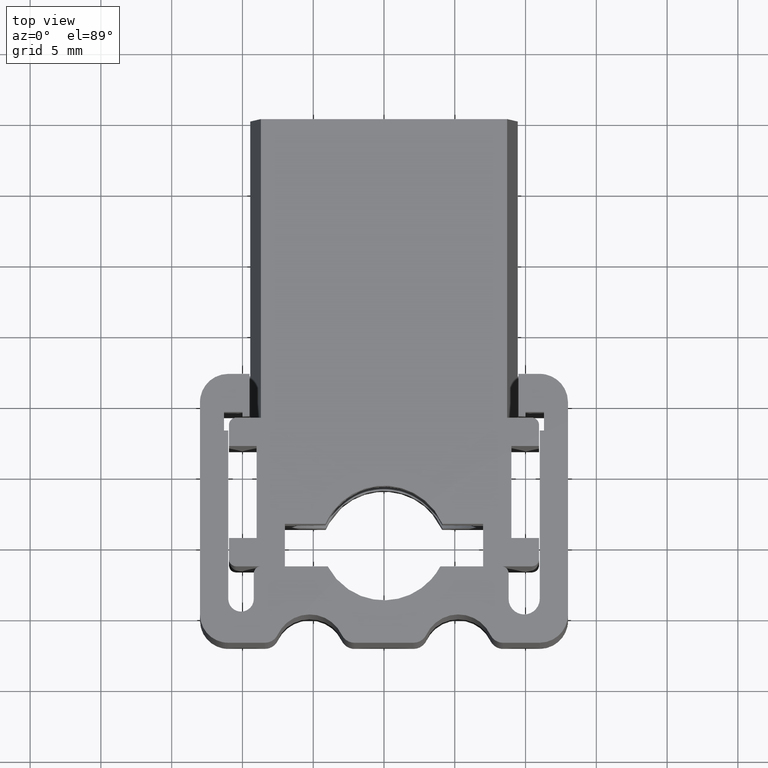
[diagram: clean part render]
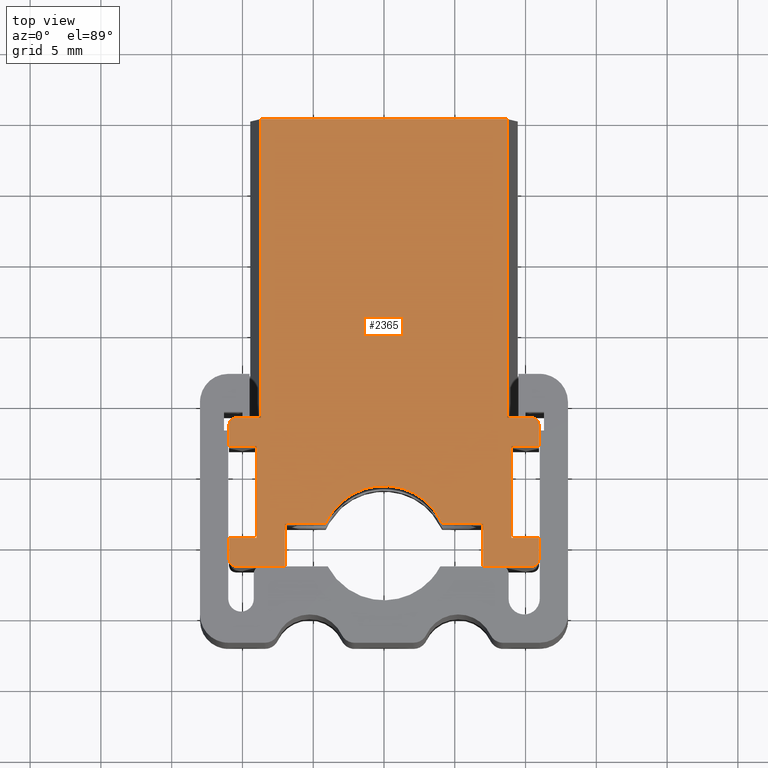
[diagram: same view with one face highlighted and labeled with its STEP entity id]
A machine part, top view. The second image highlights one B-rep face of the part: STEP entity #2365.
In plain terms, the highlighted face is a freeform B-spline surface patch.
Its self-contained STEP definition (entity closure, byte-faithful):
#1645=CARTESIAN_POINT('',(8.700000413227830,8.900000422727320,12.500000593718100));
#1646=VERTEX_POINT('',#1645);
#1659=CARTESIAN_POINT('',(8.700000413227830,30.000000422727350,12.500000593718100));
#1660=VERTEX_POINT('',#1659);
#1666=CARTESIAN_POINT('',(8.700000413227830,30.000000422727350,12.500000593718100));
#1667=CARTESIAN_POINT('',(8.700000413227830,8.900000422727320,12.500000593718100));
#1668=QUASI_UNIFORM_CURVE('',1,(#1666,#1667),.UNSPECIFIED.,.F.,.U.);
#1669=EDGE_CURVE('',#1660,#1646,#1668,.T.);
#1911=CARTESIAN_POINT('',(-8.700000413227800,8.900000422727320,12.500000593718100));
#1912=VERTEX_POINT('',#1911);
#1918=CARTESIAN_POINT('',(-8.700000413227800,30.000000422727350,12.500000593718100));
#1919=VERTEX_POINT('',#1918);
#1920=CARTESIAN_POINT('',(-8.700000413227800,30.000000422727350,12.500000593718100));
#1921=CARTESIAN_POINT('',(-8.700000413227800,8.900000422727320,12.500000593718100));
#1922=QUASI_UNIFORM_CURVE('',1,(#1920,#1921),.UNSPECIFIED.,.F.,.U.);
#1923=EDGE_CURVE('',#1919,#1912,#1922,.T.);
#2150=CARTESIAN_POINT('',(-12.043905940771371,31.578420089753450,12.500000000000000));
#2151=CARTESIAN_POINT('',(12.043906136572691,31.578420089753450,12.500000000000000));
#2152=CARTESIAN_POINT('',(-12.043905940771371,-3.178420873126103,12.500000000000000));
#2153=CARTESIAN_POINT('',(12.043906136572691,-3.178420873126103,12.500000000000000));
#2154=B_SPLINE_SURFACE_WITH_KNOTS('',1,1,((#2150,#2152),(#2151,#2153)),.UNSPECIFIED.,.F.,.F.,.U.,(2,2),(2,2),(0.0,24.087812077344061),(0.0,34.756840962879551),.UNSPECIFIED.);
#2155=CARTESIAN_POINT('',(10.950000520097101,8.400000398978621,12.500000000000000));
#2156=VERTEX_POINT('',#2155);
#2157=CARTESIAN_POINT('',(10.450000496348400,8.900000422727320,12.500000000000000));
#2158=VERTEX_POINT('',#2157);
#2159=CARTESIAN_POINT('',(10.950000520097120,8.400000398978621,12.500000000000000));
#2160=CARTESIAN_POINT('',(10.950000520097120,8.900000422727342,12.499999999999998));
#2161=CARTESIAN_POINT('',(10.450000496348400,8.900000422727342,12.500000000000000));
#2169=(BOUNDED_CURVE()B_SPLINE_CURVE(2,(#2159,#2160,#2161),.UNSPECIFIED.,.F.,.U.)CURVE()GEOMETRIC_REPRESENTATION_ITEM()QUASI_UNIFORM_CURVE()RATIONAL_B_SPLINE_CURVE((1.0,0.707106781186547,1.0))REPRESENTATION_ITEM(''));
#2170=EDGE_CURVE('',#2156,#2158,#2169,.T.);
#2171=ORIENTED_EDGE('',*,*,#2170,.T.);
#2172=CARTESIAN_POINT('',(8.700000413227830,8.900000422727320,12.500000593718100));
#2173=CARTESIAN_POINT('',(10.450000496348400,8.900000422727320,12.500000000000000));
#2174=QUASI_UNIFORM_CURVE('',1,(#2172,#2173),.UNSPECIFIED.,.F.,.U.);
#2175=EDGE_CURVE('',#1646,#2158,#2174,.T.);
#2176=ORIENTED_EDGE('',*,*,#2175,.F.);
#2177=ORIENTED_EDGE('',*,*,#1669,.F.);
#2178=CARTESIAN_POINT('',(8.700000413227830,30.000000422727350,12.500000593718100));
#2179=CARTESIAN_POINT('',(-8.700000413227800,30.000000422727350,12.500000593718100));
#2180=QUASI_UNIFORM_CURVE('',1,(#2178,#2179),.UNSPECIFIED.,.F.,.U.);
#2181=EDGE_CURVE('',#1660,#1919,#2180,.T.);
#2182=ORIENTED_EDGE('',*,*,#2181,.T.);
#2183=ORIENTED_EDGE('',*,*,#1923,.T.);
#2184=CARTESIAN_POINT('',(-10.450000496348300,8.900000422727340,12.500000000000000));
#2185=VERTEX_POINT('',#2184);
#2186=CARTESIAN_POINT('',(-10.450000496348300,8.900000422727340,12.500000000000000));
#2187=CARTESIAN_POINT('',(-8.700000413227800,8.900000422727320,12.500000593718100));
#2188=QUASI_UNIFORM_CURVE('',1,(#2186,#2187),.UNSPECIFIED.,.F.,.U.);
#2189=EDGE_CURVE('',#2185,#1912,#2188,.T.);
#2190=ORIENTED_EDGE('',*,*,#2189,.F.);
#2191=CARTESIAN_POINT('',(-10.950000520097040,8.400000398978621,12.500000000000000));
#2192=VERTEX_POINT('',#2191);
#2193=CARTESIAN_POINT('',(-10.450000496348300,8.900000422727342,12.500000000000000));
#2194=CARTESIAN_POINT('',(-10.950000520097021,8.900000422727342,12.499999999999998));
#2195=CARTESIAN_POINT('',(-10.950000520097021,8.400000398978621,12.500000000000000));
#2203=(BOUNDED_CURVE()B_SPLINE_CURVE(2,(#2193,#2194,#2195),.UNSPECIFIED.,.F.,.U.)CURVE()GEOMETRIC_REPRESENTATION_ITEM()QUASI_UNIFORM_CURVE()RATIONAL_B_SPLINE_CURVE((1.0,0.707106781186547,1.0))REPRESENTATION_ITEM(''));
#2204=EDGE_CURVE('',#2185,#2192,#2203,.T.);
#2205=ORIENTED_EDGE('',*,*,#2204,.T.);
#2206=CARTESIAN_POINT('',(-10.950000520097040,6.900000327732411,12.500000000000000));
#2207=VERTEX_POINT('',#2206);
#2208=CARTESIAN_POINT('',(-10.950000520097040,6.900000327732411,12.500000000000000));
#2209=CARTESIAN_POINT('',(-10.950000520097040,8.400000398978621,12.500000000000000));
#2210=QUASI_UNIFORM_CURVE('',1,(#2208,#2209),.UNSPECIFIED.,.F.,.U.);
#2211=EDGE_CURVE('',#2207,#2192,#2210,.T.);
#2212=ORIENTED_EDGE('',*,*,#2211,.F.);
#2213=CARTESIAN_POINT('',(-9.000000427477010,6.900000327732411,12.500000000000000));
#2214=VERTEX_POINT('',#2213);
#2215=CARTESIAN_POINT('',(-9.000000427477010,6.900000327732411,12.500000000000000));
#2216=CARTESIAN_POINT('',(-10.950000520097040,6.900000327732411,12.500000000000000));
#2217=QUASI_UNIFORM_CURVE('',1,(#2215,#2216),.UNSPECIFIED.,.F.,.U.);
#2218=EDGE_CURVE('',#2214,#2207,#2217,.T.);
#2219=ORIENTED_EDGE('',*,*,#2218,.F.);
#2220=CARTESIAN_POINT('',(-9.000000427477010,0.400000018999009,12.500000000000000));
#2221=VERTEX_POINT('',#2220);
#2222=CARTESIAN_POINT('',(-9.000000427477010,0.400000018999009,12.500000000000000));
#2223=CARTESIAN_POINT('',(-9.000000427477010,6.900000327732411,12.500000000000000));
#2224=QUASI_UNIFORM_CURVE('',1,(#2222,#2223),.UNSPECIFIED.,.F.,.U.);
#2225=EDGE_CURVE('',#2221,#2214,#2224,.T.);
#2226=ORIENTED_EDGE('',*,*,#2225,.F.);
#2227=CARTESIAN_POINT('',(-10.950000520097040,0.400000018999009,12.500000000000000));
#2228=VERTEX_POINT('',#2227);
#2229=CARTESIAN_POINT('',(-10.950000520097040,0.400000018999009,12.500000000000000));
#2230=CARTESIAN_POINT('',(-9.000000427477010,0.400000018999009,12.500000000000000));
#2231=QUASI_UNIFORM_CURVE('',1,(#2229,#2230),.UNSPECIFIED.,.F.,.U.);
#2232=EDGE_CURVE('',#2228,#2221,#2231,.T.);
#2233=ORIENTED_EDGE('',*,*,#2232,.F.);
#2234=CARTESIAN_POINT('',(-10.950000520097040,-1.100000052247196,12.500000000000000));
#2235=VERTEX_POINT('',#2234);
#2236=CARTESIAN_POINT('',(-10.950000520097040,-1.100000052247196,12.500000000000000));
#2237=CARTESIAN_POINT('',(-10.950000520097040,0.400000018999009,12.500000000000000));
#2238=QUASI_UNIFORM_CURVE('',1,(#2236,#2237),.UNSPECIFIED.,.F.,.U.);
#2239=EDGE_CURVE('',#2235,#2228,#2238,.T.);
#2240=ORIENTED_EDGE('',*,*,#2239,.F.);
#2241=CARTESIAN_POINT('',(-10.450000496348300,-1.600000075995895,12.500000000000000));
#2242=VERTEX_POINT('',#2241);
#2243=CARTESIAN_POINT('',(-10.950000520097030,-1.100000052247196,12.500000000000000));
#2244=CARTESIAN_POINT('',(-10.950000520097028,-1.600000075995924,12.499999999999998));
#2245=CARTESIAN_POINT('',(-10.450000496348300,-1.600000075995923,12.500000000000000));
#2253=(BOUNDED_CURVE()B_SPLINE_CURVE(2,(#2243,#2244,#2245),.UNSPECIFIED.,.F.,.U.)CURVE()GEOMETRIC_REPRESENTATION_ITEM()QUASI_UNIFORM_CURVE()RATIONAL_B_SPLINE_CURVE((1.0,0.707106781186547,1.0))REPRESENTATION_ITEM(''));
#2254=EDGE_CURVE('',#2235,#2242,#2253,.T.);
#2255=ORIENTED_EDGE('',*,*,#2254,.T.);
#2256=CARTESIAN_POINT('',(-7.0,-1.600000075995895,12.500000000000000));
#2257=VERTEX_POINT('',#2256);
#2258=CARTESIAN_POINT('',(-7.0,-1.600000075995895,12.500000000000000));
#2259=CARTESIAN_POINT('',(-10.450000496348300,-1.600000075995895,12.500000000000000));
#2260=QUASI_UNIFORM_CURVE('',1,(#2258,#2259),.UNSPECIFIED.,.F.,.U.);
#2261=EDGE_CURVE('',#2257,#2242,#2260,.T.);
#2262=ORIENTED_EDGE('',*,*,#2261,.F.);
#2263=CARTESIAN_POINT('',(-7.0,1.400000000000000,12.500000000000000));
#2264=VERTEX_POINT('',#2263);
#2265=CARTESIAN_POINT('',(-7.0,1.400000000000000,12.500000000000000));
#2266=CARTESIAN_POINT('',(-7.0,-1.600000075995895,12.500000000000000));
#2267=QUASI_UNIFORM_CURVE('',1,(#2265,#2266),.UNSPECIFIED.,.F.,.U.);
#2268=EDGE_CURVE('',#2264,#2257,#2267,.T.);
#2269=ORIENTED_EDGE('',*,*,#2268,.F.);
#2270=CARTESIAN_POINT('',(-4.124207449056706,1.400000000000000,12.500000000000000));
#2271=VERTEX_POINT('',#2270);
#2272=CARTESIAN_POINT('',(-4.124207449056706,1.400000000000000,12.500000000000000));
#2273=CARTESIAN_POINT('',(-7.0,1.400000000000000,12.500000000000000));
#2274=QUASI_UNIFORM_CURVE('',1,(#2272,#2273),.UNSPECIFIED.,.F.,.U.);
#2275=EDGE_CURVE('',#2271,#2264,#2274,.T.);
#2276=ORIENTED_EDGE('',*,*,#2275,.F.);
#2277=CARTESIAN_POINT('',(4.124207448008716,1.400000000000000,12.500000000000000));
#2278=VERTEX_POINT('',#2277);
#2279=CARTESIAN_POINT('',(4.124207448008713,1.399999999999998,12.500000000000000));
#2280=CARTESIAN_POINT('',(2.945909369137703,4.099999194738672,12.500000000000000));
#2281=CARTESIAN_POINT('',(-5.239968E-010,4.099999194738671,12.500000000000000));
#2282=CARTESIAN_POINT('',(-2.945909370185696,4.099999194738672,12.500000000000000));
#2283=CARTESIAN_POINT('',(-4.124207449056706,1.400000000000001,12.500000000000000));
#2291=(BOUNDED_CURVE()B_SPLINE_CURVE(2,(#2279,#2280,#2281,#2282,#2283),.UNSPECIFIED.,.F.,.U.)B_SPLINE_CURVE_WITH_KNOTS((3,2,3),(0.0,0.500000000000000,1.0),.UNSPECIFIED.)CURVE()GEOMETRIC_REPRESENTATION_ITEM()RATIONAL_B_SPLINE_CURVE((1.0,0.836653365622064,1.0,0.836653365622064,1.0))REPRESENTATION_ITEM(''));
#2292=EDGE_CURVE('',#2278,#2271,#2291,.T.);
#2293=ORIENTED_EDGE('',*,*,#2292,.F.);
#2294=CARTESIAN_POINT('',(7.0,1.400000000000000,12.500000000000000));
#2295=VERTEX_POINT('',#2294);
#2296=CARTESIAN_POINT('',(7.0,1.400000000000000,12.500000000000000));
#2297=CARTESIAN_POINT('',(4.124207448008716,1.400000000000000,12.500000000000000));
#2298=QUASI_UNIFORM_CURVE('',1,(#2296,#2297),.UNSPECIFIED.,.F.,.U.);
#2299=EDGE_CURVE('',#2295,#2278,#2298,.T.);
#2300=ORIENTED_EDGE('',*,*,#2299,.F.);
#2301=CARTESIAN_POINT('',(7.0,-1.600000075995895,12.500000000000000));
#2302=VERTEX_POINT('',#2301);
#2303=CARTESIAN_POINT('',(7.0,-1.600000075995895,12.500000000000000));
#2304=CARTESIAN_POINT('',(7.0,1.400000000000000,12.500000000000000));
#2305=QUASI_UNIFORM_CURVE('',1,(#2303,#2304),.UNSPECIFIED.,.F.,.U.);
#2306=EDGE_CURVE('',#2302,#2295,#2305,.T.);
#2307=ORIENTED_EDGE('',*,*,#2306,.F.);
#2308=CARTESIAN_POINT('',(10.450000496348400,-1.600000075995925,12.500000000000000));
#2309=VERTEX_POINT('',#2308);
#2310=CARTESIAN_POINT('',(10.450000496348400,-1.600000075995925,12.500000000000000));
#2311=CARTESIAN_POINT('',(7.0,-1.600000075995895,12.500000000000000));
#2312=QUASI_UNIFORM_CURVE('',1,(#2310,#2311),.UNSPECIFIED.,.F.,.U.);
#2313=EDGE_CURVE('',#2309,#2302,#2312,.T.);
#2314=ORIENTED_EDGE('',*,*,#2313,.F.);
#2315=CARTESIAN_POINT('',(10.950000520097101,-1.100000052247196,12.500000000000000));
#2316=VERTEX_POINT('',#2315);
#2317=CARTESIAN_POINT('',(10.450000496348400,-1.600000075995923,12.500000000000000));
#2318=CARTESIAN_POINT('',(10.950000520097127,-1.600000075995924,12.499999999999998));
#2319=CARTESIAN_POINT('',(10.950000520097101,-1.100000052247196,12.500000000000000));
#2327=(BOUNDED_CURVE()B_SPLINE_CURVE(2,(#2317,#2318,#2319),.UNSPECIFIED.,.F.,.U.)CURVE()GEOMETRIC_REPRESENTATION_ITEM()QUASI_UNIFORM_CURVE()RATIONAL_B_SPLINE_CURVE((1.0,0.707106781186547,1.0))REPRESENTATION_ITEM(''));
#2328=EDGE_CURVE('',#2309,#2316,#2327,.T.);
#2329=ORIENTED_EDGE('',*,*,#2328,.T.);
#2330=CARTESIAN_POINT('',(10.950000520097101,0.400000018999009,12.500000000000000));
#2331=VERTEX_POINT('',#2330);
#2332=CARTESIAN_POINT('',(10.950000520097101,0.400000018999009,12.500000000000000));
#2333=CARTESIAN_POINT('',(10.950000520097101,-1.100000052247196,12.500000000000000));
#2334=QUASI_UNIFORM_CURVE('',1,(#2332,#2333),.UNSPECIFIED.,.F.,.U.);
#2335=EDGE_CURVE('',#2331,#2316,#2334,.T.);
#2336=ORIENTED_EDGE('',*,*,#2335,.F.);
#2337=CARTESIAN_POINT('',(9.000000427477108,0.400000018999009,12.500000000000000));
#2338=VERTEX_POINT('',#2337);
#2339=CARTESIAN_POINT('',(9.000000427477108,0.400000018999009,12.500000000000000));
#2340=CARTESIAN_POINT('',(10.950000520097101,0.400000018999009,12.500000000000000));
#2341=QUASI_UNIFORM_CURVE('',1,(#2339,#2340),.UNSPECIFIED.,.F.,.U.);
#2342=EDGE_CURVE('',#2338,#2331,#2341,.T.);
#2343=ORIENTED_EDGE('',*,*,#2342,.F.);
#2344=CARTESIAN_POINT('',(9.000000427477108,6.900000327732411,12.500000000000000));
#2345=VERTEX_POINT('',#2344);
#2346=CARTESIAN_POINT('',(9.000000427477108,6.900000327732411,12.500000000000000));
#2347=CARTESIAN_POINT('',(9.000000427477108,0.400000018999009,12.500000000000000));
#2348=QUASI_UNIFORM_CURVE('',1,(#2346,#2347),.UNSPECIFIED.,.F.,.U.);
#2349=EDGE_CURVE('',#2345,#2338,#2348,.T.);
#2350=ORIENTED_EDGE('',*,*,#2349,.F.);
#2351=CARTESIAN_POINT('',(10.950000520097101,6.900000327732501,12.500000000000000));
#2352=VERTEX_POINT('',#2351);
#2353=CARTESIAN_POINT('',(10.950000520097101,6.900000327732501,12.500000000000000));
#2354=CARTESIAN_POINT('',(9.000000427477108,6.900000327732411,12.500000000000000));
#2355=QUASI_UNIFORM_CURVE('',1,(#2353,#2354),.UNSPECIFIED.,.F.,.U.);
#2356=EDGE_CURVE('',#2352,#2345,#2355,.T.);
#2357=ORIENTED_EDGE('',*,*,#2356,.F.);
#2358=CARTESIAN_POINT('',(10.950000520097101,8.400000398978621,12.500000000000000));
#2359=CARTESIAN_POINT('',(10.950000520097101,6.900000327732501,12.500000000000000));
#2360=QUASI_UNIFORM_CURVE('',1,(#2358,#2359),.UNSPECIFIED.,.F.,.U.);
#2361=EDGE_CURVE('',#2156,#2352,#2360,.T.);
#2362=ORIENTED_EDGE('',*,*,#2361,.F.);
#2363=EDGE_LOOP('',(#2171,#2176,#2177,#2182,#2183,#2190,#2205,#2212,#2219,#2226,#2233,#2240,#2255,#2262,#2269,#2276,#2293,#2300,#2307,#2314,#2329,#2336,#2343,#2350,#2357,#2362));
#2364=FACE_OUTER_BOUND('',#2363,.T.);
#2365=ADVANCED_FACE('',(#2364),#2154,.F.);